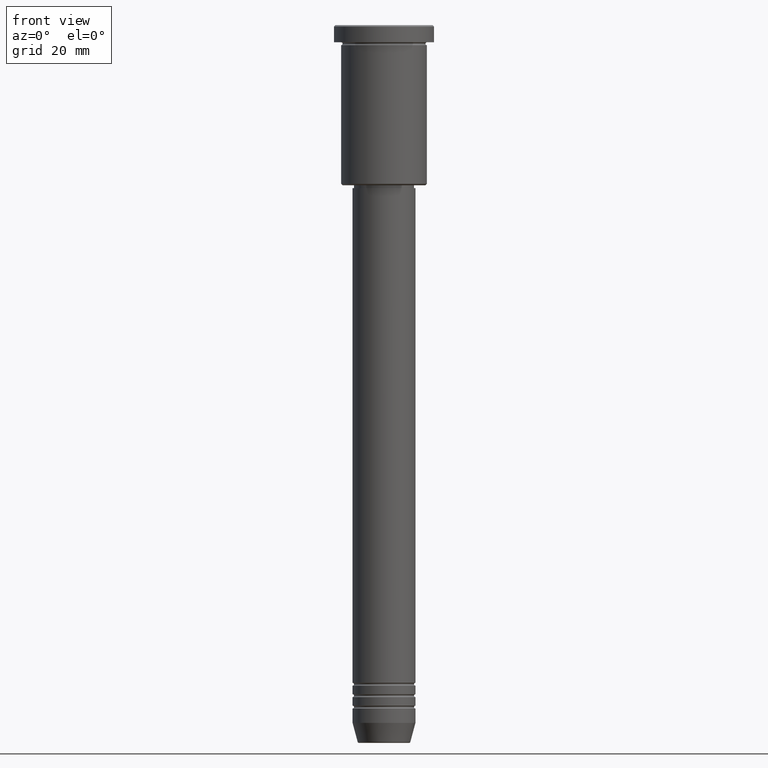
[diagram: clean part render]
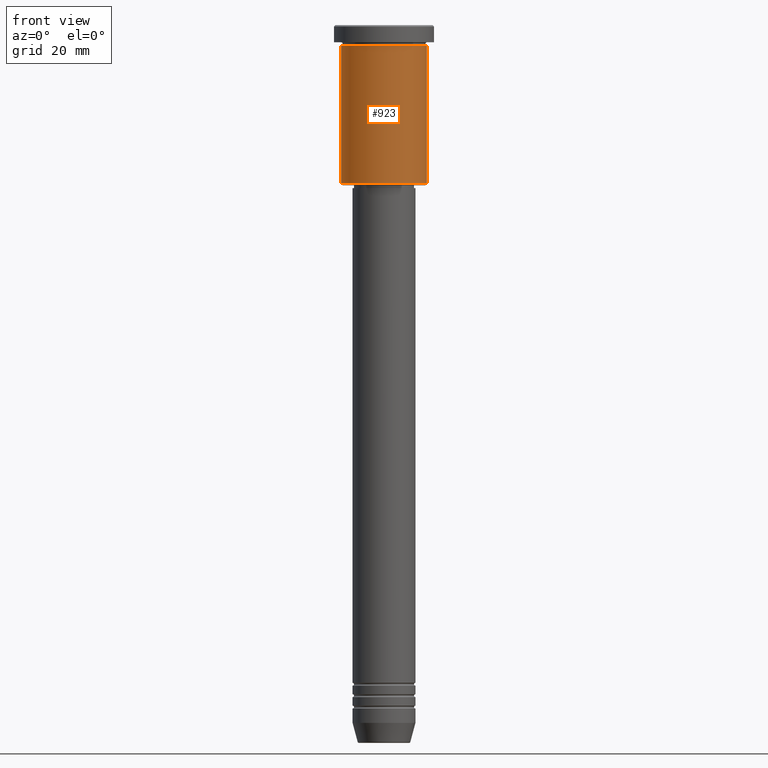
[diagram: same view with one face highlighted and labeled with its STEP entity id]
A machine part, front view. The second image highlights one B-rep face of the part: STEP entity #923.
In plain terms, the highlighted cylindrical surface (partial cylindrical patch) has radius 15 mm, axis along (-0, -0, 1).
Its self-contained STEP definition (entity closure, byte-faithful):
#1 = VERTEX_POINT ( 'NONE', #43 ) ;
#4 = EDGE_CURVE ( 'NONE', #1095, #406, #679, .T. ) ;
#5 = DIRECTION ( 'NONE',  ( -0.000000000000000000, -0.000000000000000000, 1.000000000000000000 ) ) ;
#31 = VECTOR ( 'NONE', #366, 1000.000000000000000 ) ;
#43 = CARTESIAN_POINT ( 'NONE',  ( -15.00000000000000000, 1.836970198721029589E-15, -6.999999999999995559 ) ) ;
#48 = VERTEX_POINT ( 'NONE', #338 ) ;
#81 = CARTESIAN_POINT ( 'NONE',  ( 15.00000000000000000, 0.000000000000000000, -6.999999999999995559 ) ) ;
#131 = EDGE_LOOP ( 'NONE', ( #1107, #953, #865, #496 ) ) ;
#234 = AXIS2_PLACEMENT_3D ( 'NONE', #518, #5, #554 ) ;
#274 = CARTESIAN_POINT ( 'NONE',  ( 0.000000000000000000, 0.000000000000000000, 0.000000000000000000 ) ) ;
#338 = CARTESIAN_POINT ( 'NONE',  ( -15.00000000000000000, 1.836970198721029589E-15, -55.50000000000000711 ) ) ;
#351 = DIRECTION ( 'NONE',  ( -0.000000000000000000, -0.000000000000000000, 1.000000000000000000 ) ) ;
#356 = CYLINDRICAL_SURFACE ( 'NONE', #419, 15.00000000000000000 ) ;
#366 = DIRECTION ( 'NONE',  ( -0.000000000000000000, -0.000000000000000000, 1.000000000000000000 ) ) ;
#406 = VERTEX_POINT ( 'NONE', #81 ) ;
#419 = AXIS2_PLACEMENT_3D ( 'NONE', #274, #351, #822 ) ;
#464 = CARTESIAN_POINT ( 'NONE',  ( -15.00000000000000000, 1.836970198721029589E-15, 0.000000000000000000 ) ) ;
#483 = DIRECTION ( 'NONE',  ( -0.000000000000000000, -0.000000000000000000, 1.000000000000000000 ) ) ;
#496 = ORIENTED_EDGE ( 'NONE', *, *, #805, .F. ) ;
#508 = CIRCLE ( 'NONE', #234, 15.00000000000000000 ) ;
#518 = CARTESIAN_POINT ( 'NONE',  ( 0.000000000000000000, 0.000000000000000000, -6.999999999999995559 ) ) ;
#554 = DIRECTION ( 'NONE',  ( 1.000000000000000000, 0.000000000000000000, 0.000000000000000000 ) ) ;
#603 = CIRCLE ( 'NONE', #1117, 15.00000000000000000 ) ;
#679 = LINE ( 'NONE', #965, #803 ) ;
#700 = CARTESIAN_POINT ( 'NONE',  ( 0.000000000000000000, 0.000000000000000000, -55.50000000000000711 ) ) ;
#706 = EDGE_CURVE ( 'NONE', #48, #1095, #603, .T. ) ;
#803 = VECTOR ( 'NONE', #483, 1000.000000000000000 ) ;
#805 = EDGE_CURVE ( 'NONE', #1, #406, #508, .T. ) ;
#822 = DIRECTION ( 'NONE',  ( 1.000000000000000000, 0.000000000000000000, 0.000000000000000000 ) ) ;
#858 = DIRECTION ( 'NONE',  ( -0.000000000000000000, -0.000000000000000000, 1.000000000000000000 ) ) ;
#865 = ORIENTED_EDGE ( 'NONE', *, *, #4, .T. ) ;
#891 = FACE_OUTER_BOUND ( 'NONE', #131, .T. ) ;
#910 = LINE ( 'NONE', #464, #31 ) ;
#923 = ADVANCED_FACE ( 'NONE', ( #891 ), #356, .T. ) ;
#953 = ORIENTED_EDGE ( 'NONE', *, *, #706, .T. ) ;
#965 = CARTESIAN_POINT ( 'NONE',  ( 15.00000000000000000, 0.000000000000000000, 0.000000000000000000 ) ) ;
#1064 = DIRECTION ( 'NONE',  ( -1.000000000000000000, 0.000000000000000000, 0.000000000000000000 ) ) ;
#1083 = EDGE_CURVE ( 'NONE', #48, #1, #910, .T. ) ;
#1095 = VERTEX_POINT ( 'NONE', #1169 ) ;
#1107 = ORIENTED_EDGE ( 'NONE', *, *, #1083, .F. ) ;
#1117 = AXIS2_PLACEMENT_3D ( 'NONE', #700, #858, #1064 ) ;
#1169 = CARTESIAN_POINT ( 'NONE',  ( 15.00000000000000000, 0.000000000000000000, -55.50000000000000711 ) ) ;